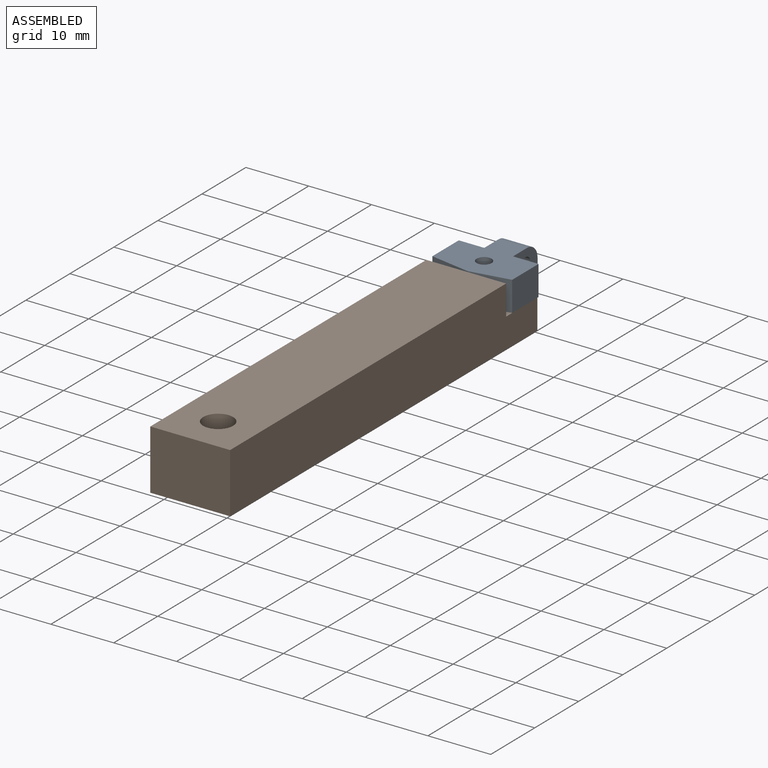
[diagram: assembled view]
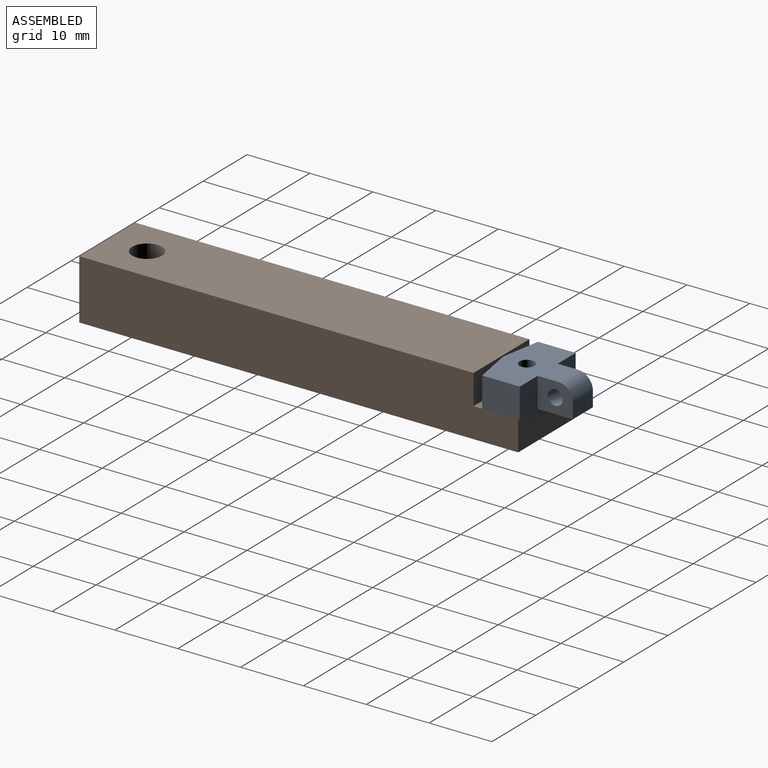
[diagram: assembled view, second angle]
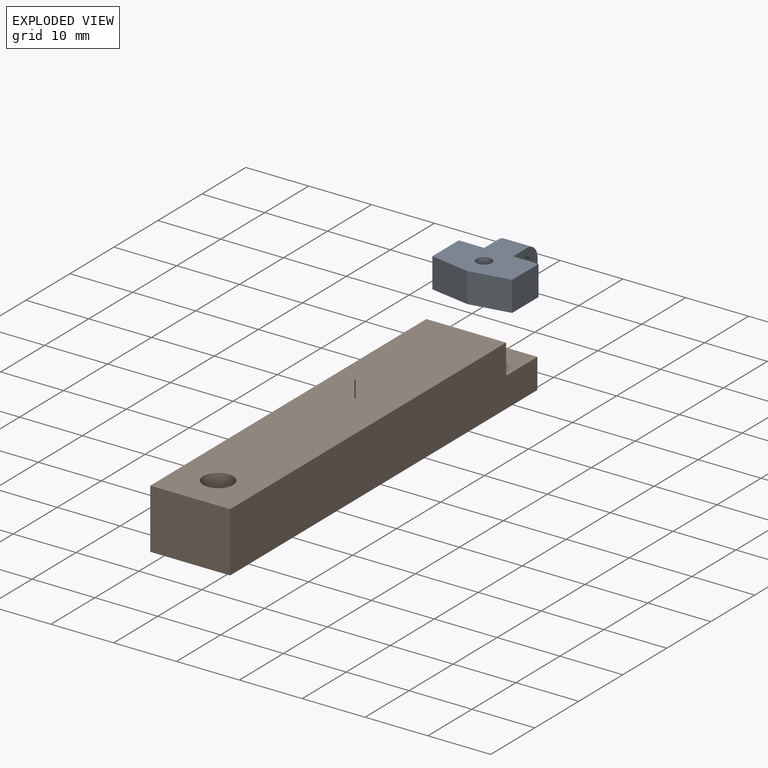
[diagram: exploded view]
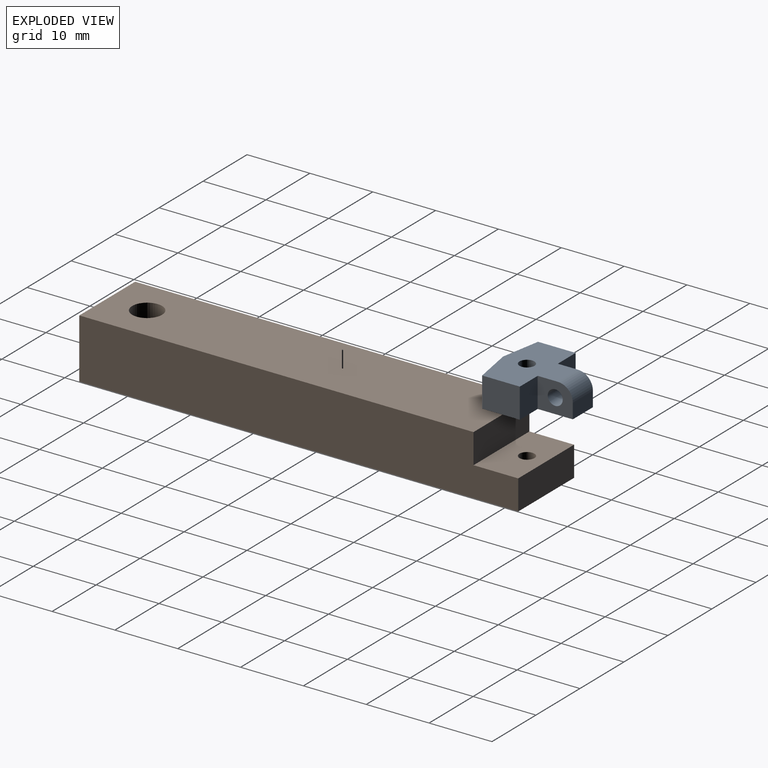
[diagram: exploded view, second angle]
ASSEMBLY  parts=2 mates=2
PART A: 14 faces, bbox 12.7x12.7x4.8 mm
  f0: plane 6.35x4.76mm, normal (0.17,-0.98,0), area 30.7mm2, adj f1,f8,f9,f10
  f1: plane 5.99x4.76mm, normal (1,0,0), area 28.5mm2, adj f0,f2,f9,f10
  f2: plane 4.76x4.06mm, normal (0,1,0), area 19.4mm2, adj f1,f3,f9,f10
  f3: plane 5.59x4.76mm, normal (1,0,0), area 20.9mm2, adj f2,f4,f9,f10,f11,f13
  f4: plane 4.57x2.38mm, normal (0,1,0), area 10.9mm2, adj f3,f5,f10,f13
  f5: plane 5.59x4.76mm, normal (-1,0,0), area 20.9mm2, adj f4,f6,f9,f10,f11,f13
  f6: plane 4.76x4.06mm, normal (0,1,0), area 19.4mm2, adj f5,f7,f9,f10
  f7: plane 5.99x4.76mm, normal (-1,0,0), area 28.5mm2, adj f6,f8,f9,f10
  f8: plane 6.35x4.76mm, normal (-0.17,-0.98,0), area 30.7mm2, adj f0,f7,f9,f10
  f9: plane 12.7x10.32mm, normal (0,0,1), area 93.4mm2, adj f0,f1,f2,f3,f5,f6,f7,f8
  f10: plane 12.7x12.7mm, normal (0,0,-1), area 104.3mm2, adj f0,f1,f2,f3,f4,f5,f6,f7
  f11: cylinder r=1.19mm len=4.57mm, axis (1,0,0), area 34.2mm2, adj f3,f5
  f12: cylinder r=1.19mm len=4.76mm, axis (0,0,1), area 35.6mm2, adj f9,f10
  f13: cylinder r=2.38mm len=4.57mm, axis (1,0,0), area 17.1mm2, adj f3,f4,f5,f9
PART B: 10 faces, bbox 12.7x69.9x9.5 mm
  f0: plane 12.7x4.76mm, normal (0,1,0), area 60.5mm2, adj f1,f3,f5,f6
  f1: plane 69.85x9.53mm, normal (-1,0,0), area 631.5mm2, adj f0,f2,f4,f5,f6,f7
  f2: plane 12.7x9.53mm, normal (0,-1,0), area 121mm2, adj f1,f3,f4,f5
  f3: plane 69.85x9.53mm, normal (1,0,0), area 631.5mm2, adj f0,f2,f4,f5,f6,f7
  f4: plane 62.74x12.7mm, normal (0,0,1), area 779mm2, adj f1,f2,f3,f7,f9
  f5: plane 69.85x12.7mm, normal (0,0,-1), area 864.8mm2, adj f0,f1,f2,f3,f8,f9
  f6: plane 12.7x7.11mm, normal (0,0,1), area 85.9mm2, adj f0,f1,f3,f7,f8
  f7: plane 12.7x4.76mm, normal (0,1,0), area 60.5mm2, adj f1,f3,f4,f6
  f8: cylinder r=1.19mm len=4.76mm, axis (0,0,1), area 35.6mm2, adj f5,f6
  f9: cylinder r=2.38mm len=9.53mm, axis (0,0,1), area 142.5mm2, adj f4,f5
PLACE A t=(-4.41,-3.33,-1.4)mm
PLACE B t=(-10.76,-66.32,-6.16)mm
MATE cylindrical A.f12 <-> B.f8  axis (0,0,1) through (-4.41,0.48,3.37)mm
MATE planar A.f10 <-> B.f6  axis (0,0,-1) through (-10.76,-2.21,-1.4)mm
